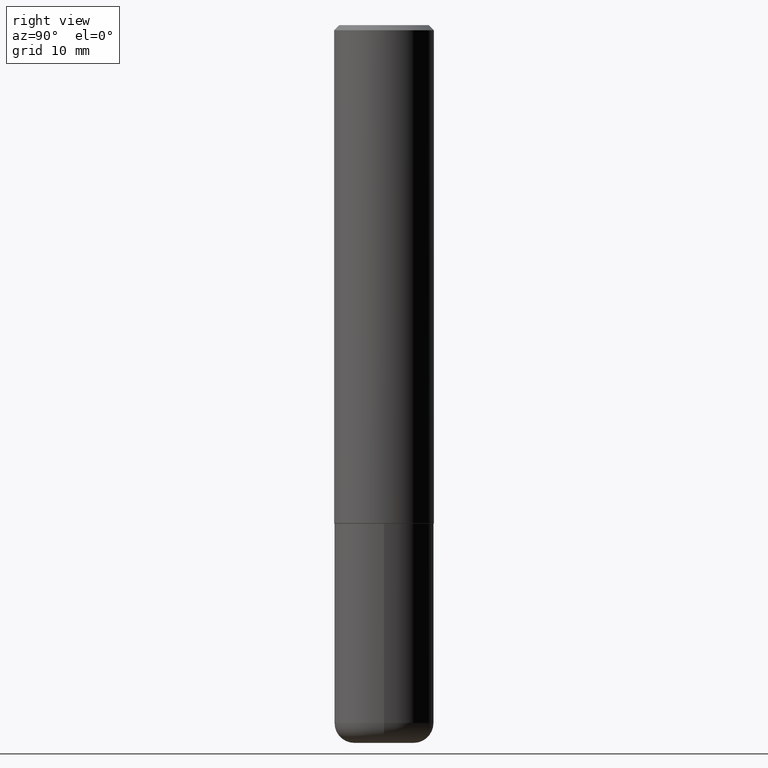
[diagram: clean part render]
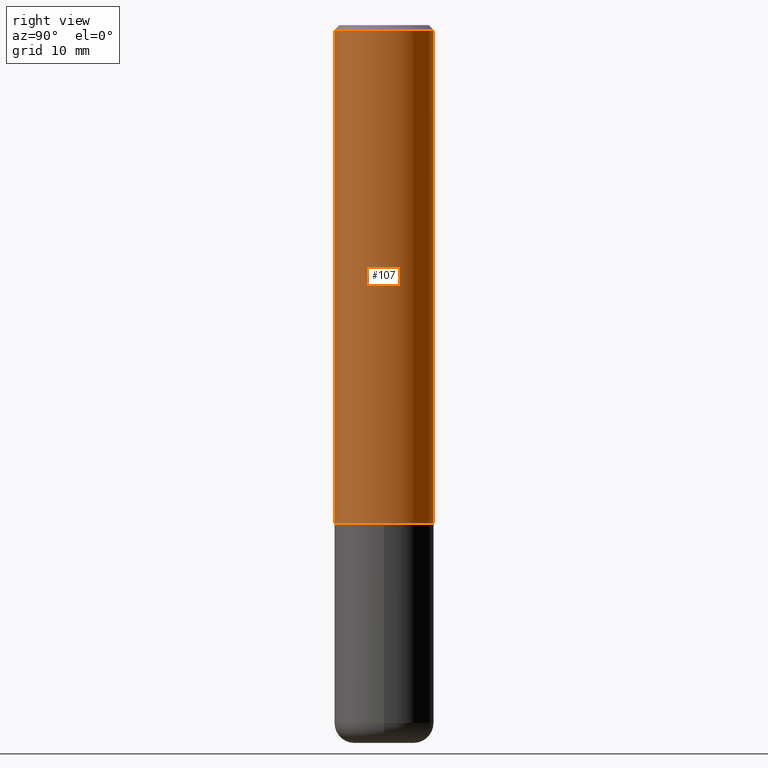
[diagram: same view with one face highlighted and labeled with its STEP entity id]
A machine part, right view. The second image highlights one B-rep face of the part: STEP entity #107.
In plain terms, the highlighted cylindrical surface (partial cylindrical patch) has radius 5 mm, axis along (-0, 0, 1).
Its self-contained STEP definition (entity closure, byte-faithful):
#4 = FACE_OUTER_BOUND ( 'NONE', #242, .T. ) ;
#29 = ORIENTED_EDGE ( 'NONE', *, *, #79, .F. ) ;
#50 = DIRECTION ( 'NONE',  ( -2.445768211810956331E-29, 3.491052572945861549E-15, 1.000000000000000000 ) ) ;
#67 = CIRCLE ( 'NONE', #380, 0.1968500000000002470 ) ;
#79 = EDGE_CURVE ( 'NONE', #264, #233, #92, .T. ) ;
#83 = VECTOR ( 'NONE', #223, 39.37007874015748143 ) ;
#87 = CARTESIAN_POINT ( 'NONE',  ( 1.398703375343782834E-15, 0.1968499999999934191, -1.967500000000000471 ) ) ;
#91 = CARTESIAN_POINT ( 'NONE',  ( 1.398703375343757788E-15, 0.1968500000000001082, -6.872136989843933563E-16 ) ) ;
#92 = CIRCLE ( 'NONE', #338, 0.1968500000000000250 ) ;
#93 = CARTESIAN_POINT ( 'NONE',  ( 4.891536423621923102E-31, -6.982105145891738778E-17, -0.02000000000000004205 ) ) ;
#107 = ADVANCED_FACE ( 'NONE', ( #4 ), #213, .T. ) ;
#112 = ORIENTED_EDGE ( 'NONE', *, *, #140, .T. ) ;
#125 = CARTESIAN_POINT ( 'NONE',  ( 1.374596203102542003E-15, 0.1968499999999999417, -0.02000000000000072900 ) ) ;
#128 = LINE ( 'NONE', #91, #83 ) ;
#140 = EDGE_CURVE ( 'NONE', #382, #341, #67, .T. ) ;
#148 = AXIS2_PLACEMENT_3D ( 'NONE', #358, #149, #408 ) ;
#149 = DIRECTION ( 'NONE',  ( -2.445768211810956331E-29, 3.491052572945861944E-15, 1.000000000000000000 ) ) ;
#152 = LINE ( 'NONE', #348, #261 ) ;
#157 = CARTESIAN_POINT ( 'NONE',  ( 4.812048956738055591E-29, -6.868645937270982279E-15, -1.967499999999999805 ) ) ;
#212 = DIRECTION ( 'NONE',  ( -6.982962677686265133E-15, -1.000000000000000000, 3.491137977679279424E-15 ) ) ;
#213 = CYLINDRICAL_SURFACE ( 'NONE', #148, 0.1968500000000001082 ) ;
#216 = CARTESIAN_POINT ( 'NONE',  ( -1.350489030861325429E-15, -0.1968500000000000805, -0.01999999999999935510 ) ) ;
#223 = DIRECTION ( 'NONE',  ( -2.445768211810956331E-29, 3.491052572945861549E-15, 1.000000000000000000 ) ) ;
#233 = VERTEX_POINT ( 'NONE', #125 ) ;
#242 = EDGE_LOOP ( 'NONE', ( #112, #385, #29, #359 ) ) ;
#255 = EDGE_CURVE ( 'NONE', #341, #233, #128, .T. ) ;
#261 = VECTOR ( 'NONE', #50, 39.37007874015748143 ) ;
#264 = VERTEX_POINT ( 'NONE', #216 ) ;
#295 = CARTESIAN_POINT ( 'NONE',  ( -1.374596203102495065E-15, -0.1968500000000071026, -1.967499999999998916 ) ) ;
#313 = DIRECTION ( 'NONE',  ( -6.982962677686265922E-15, -1.000000000000000000, 4.163344669033670112E-15 ) ) ;
#338 = AXIS2_PLACEMENT_3D ( 'NONE', #93, #404, #212 ) ;
#341 = VERTEX_POINT ( 'NONE', #87 ) ;
#348 = CARTESIAN_POINT ( 'NONE',  ( -1.374596203102542200E-15, -0.1968500000000001082, 6.872136989843933563E-16 ) ) ;
#352 = EDGE_CURVE ( 'NONE', #382, #264, #152, .T. ) ;
#358 = CARTESIAN_POINT ( 'NONE',  ( 0.000000000000000000, 0.000000000000000000, 0.000000000000000000 ) ) ;
#359 = ORIENTED_EDGE ( 'NONE', *, *, #352, .F. ) ;
#380 = AXIS2_PLACEMENT_3D ( 'NONE', #157, #383, #313 ) ;
#382 = VERTEX_POINT ( 'NONE', #295 ) ;
#383 = DIRECTION ( 'NONE',  ( -2.445768211810956331E-29, 3.491052572945861944E-15, 1.000000000000000000 ) ) ;
#385 = ORIENTED_EDGE ( 'NONE', *, *, #255, .T. ) ;
#404 = DIRECTION ( 'NONE',  ( -2.445768211810956331E-29, 3.491052572945861944E-15, 1.000000000000000000 ) ) ;
#408 = DIRECTION ( 'NONE',  ( -6.982962677686265922E-15, -1.000000000000000000, 3.491052572945862338E-15 ) ) ;